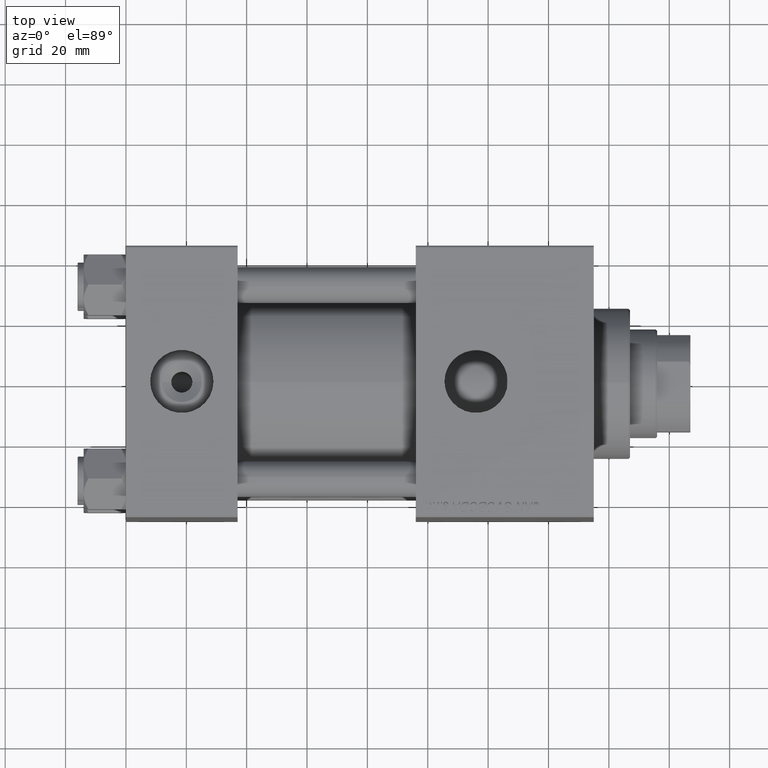
[diagram: clean part render]
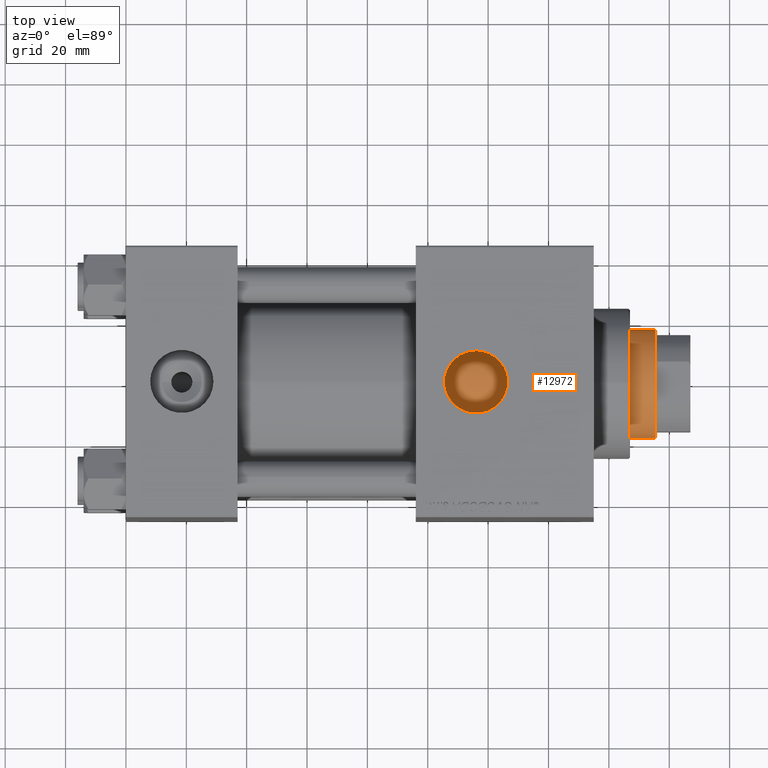
[diagram: same view with one face highlighted and labeled with its STEP entity id]
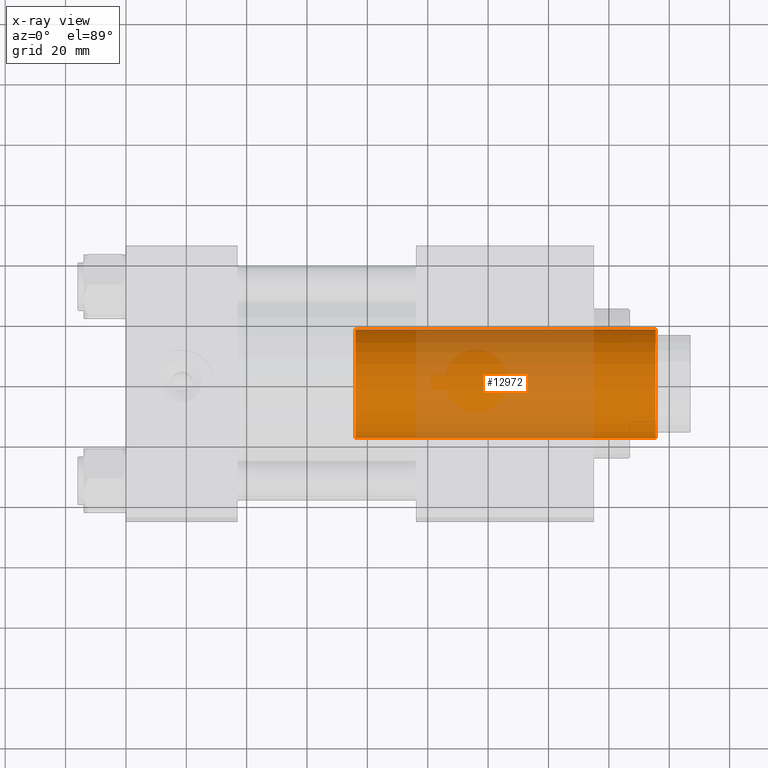
[diagram: x-ray of the same camera — body ghosted, the highlighted face saturated]
A machine part, top view. The second image highlights one B-rep face of the part: STEP entity #12972.
The next image is the same camera in x-ray: the body ghosted, the highlighted face saturated — about 49% of this face is hidden behind the body in this view.
In plain terms, the highlighted cylindrical surface (partial cylindrical patch) has radius 18 mm, axis along (-1, 0, 0).
Its self-contained STEP definition (entity closure, byte-faithful):
#2305 = CARTESIAN_POINT ( 'NONE',  ( -18.00000000000000000, 0.000000000000000000, 139.0000000000000000 ) ) ;
#3811 = AXIS2_PLACEMENT_3D ( 'NONE', #8207, #24209, #29128 ) ;
#3965 = ORIENTED_EDGE ( 'NONE', *, *, #12798, .F. ) ;
#5744 = LINE ( 'NONE', #34360, #44145 ) ;
#5835 = EDGE_CURVE ( 'NONE', #37852, #39912, #16370, .T. ) ;
#6665 = CIRCLE ( 'NONE', #39409, 18.00000000000000000 ) ;
#6890 = CARTESIAN_POINT ( 'NONE',  ( -18.00000000000000000, 0.000000000000000000, 138.5000000000000000 ) ) ;
#8207 = CARTESIAN_POINT ( 'NONE',  ( 0.000000000000000000, 0.000000000000000000, 39.00000000000000000 ) ) ;
#9437 = DIRECTION ( 'NONE',  ( -0.000000000000000000, -0.000000000000000000, -1.000000000000000000 ) ) ;
#12482 = CARTESIAN_POINT ( 'NONE',  ( 18.00000000000000000, 2.204364238465235428E-15, 138.5000000000000000 ) ) ;
#12798 = EDGE_CURVE ( 'NONE', #50574, #39912, #5744, .T. ) ;
#12972 = ADVANCED_FACE ( 'NONE', ( #50907 ), #27265, .T. ) ;
#14733 = EDGE_LOOP ( 'NONE', ( #3965, #24023, #44765, #45843 ) ) ;
#15192 = DIRECTION ( 'NONE',  ( -0.000000000000000000, -0.000000000000000000, -1.000000000000000000 ) ) ;
#15713 = CARTESIAN_POINT ( 'NONE',  ( 0.000000000000000000, 0.000000000000000000, 139.0000000000000000 ) ) ;
#16370 = CIRCLE ( 'NONE', #3811, 18.00000000000000000 ) ;
#17844 = VERTEX_POINT ( 'NONE', #6890 ) ;
#18640 = EDGE_CURVE ( 'NONE', #17844, #37852, #34088, .T. ) ;
#24023 = ORIENTED_EDGE ( 'NONE', *, *, #46755, .T. ) ;
#24209 = DIRECTION ( 'NONE',  ( 0.000000000000000000, 0.000000000000000000, 1.000000000000000000 ) ) ;
#26468 = CARTESIAN_POINT ( 'NONE',  ( 18.00000000000000000, 2.204364238465235428E-15, 39.00000000000000000 ) ) ;
#27265 = CYLINDRICAL_SURFACE ( 'NONE', #28215, 18.00000000000000000 ) ;
#28215 = AXIS2_PLACEMENT_3D ( 'NONE', #15713, #15192, #31201 ) ;
#29128 = DIRECTION ( 'NONE',  ( 1.000000000000000000, 0.000000000000000000, 0.000000000000000000 ) ) ;
#31201 = DIRECTION ( 'NONE',  ( -1.000000000000000000, 0.000000000000000000, 0.000000000000000000 ) ) ;
#31447 = DIRECTION ( 'NONE',  ( -0.000000000000000000, -0.000000000000000000, -1.000000000000000000 ) ) ;
#33414 = VECTOR ( 'NONE', #31447, 1000.000000000000000 ) ;
#34088 = LINE ( 'NONE', #2305, #33414 ) ;
#34360 = CARTESIAN_POINT ( 'NONE',  ( 18.00000000000000000, 2.204364238465235428E-15, 139.0000000000000000 ) ) ;
#37852 = VERTEX_POINT ( 'NONE', #50105 ) ;
#38759 = DIRECTION ( 'NONE',  ( 1.000000000000000000, 0.000000000000000000, 0.000000000000000000 ) ) ;
#39409 = AXIS2_PLACEMENT_3D ( 'NONE', #39548, #43228, #38759 ) ;
#39548 = CARTESIAN_POINT ( 'NONE',  ( 0.000000000000000000, 0.000000000000000000, 138.5000000000000000 ) ) ;
#39912 = VERTEX_POINT ( 'NONE', #26468 ) ;
#43228 = DIRECTION ( 'NONE',  ( 0.000000000000000000, 0.000000000000000000, -1.000000000000000000 ) ) ;
#44145 = VECTOR ( 'NONE', #9437, 1000.000000000000000 ) ;
#44765 = ORIENTED_EDGE ( 'NONE', *, *, #18640, .T. ) ;
#45843 = ORIENTED_EDGE ( 'NONE', *, *, #5835, .T. ) ;
#46755 = EDGE_CURVE ( 'NONE', #50574, #17844, #6665, .T. ) ;
#50105 = CARTESIAN_POINT ( 'NONE',  ( -18.00000000000000000, 0.000000000000000000, 39.00000000000000000 ) ) ;
#50574 = VERTEX_POINT ( 'NONE', #12482 ) ;
#50907 = FACE_OUTER_BOUND ( 'NONE', #14733, .T. ) ;